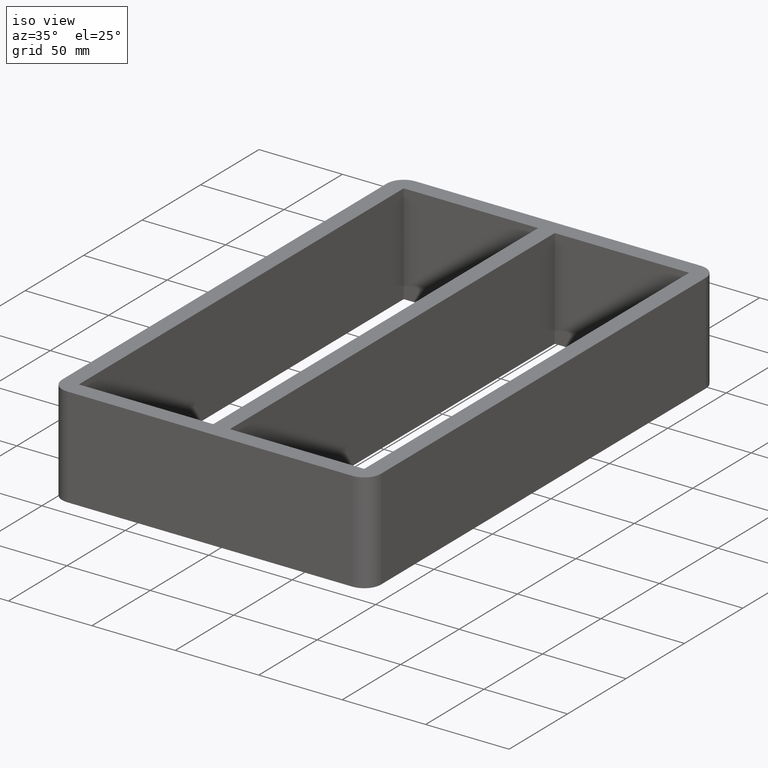
[diagram: clean part render]
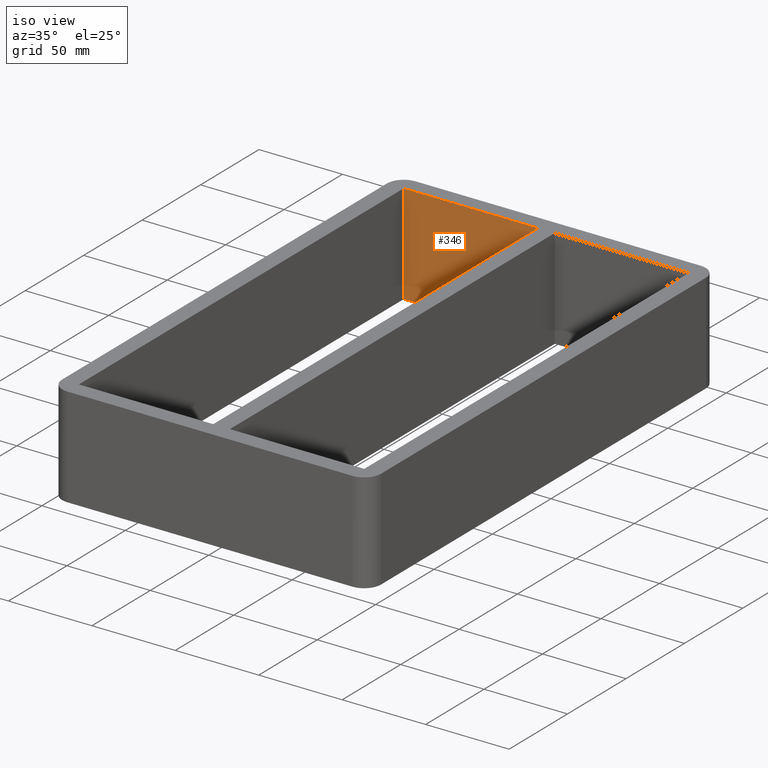
[diagram: same view with one face highlighted and labeled with its STEP entity id]
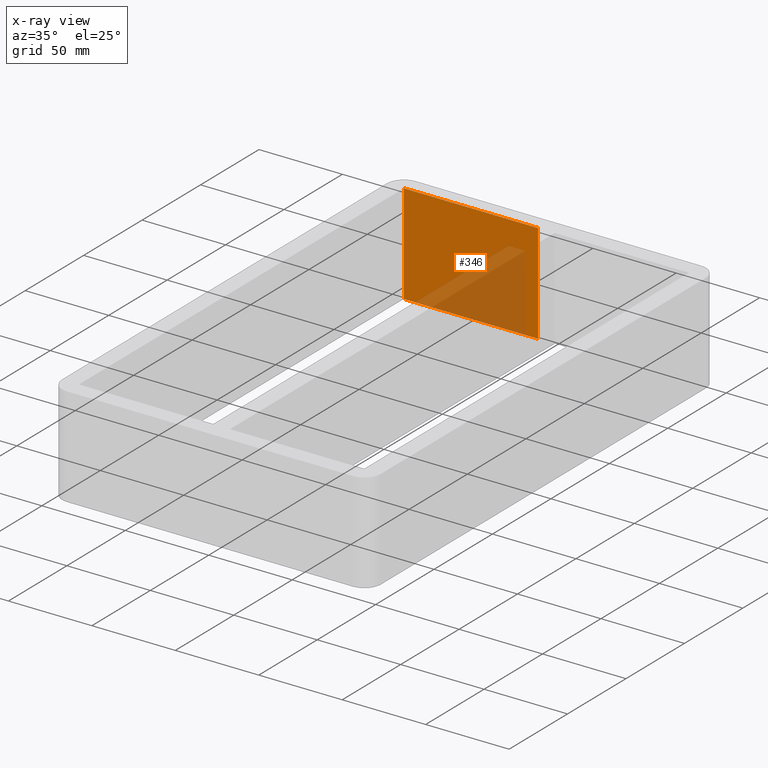
[diagram: x-ray of the same camera — body ghosted, the highlighted face saturated]
A machine part, iso view. The second image highlights one B-rep face of the part: STEP entity #346.
The next image is the same camera in x-ray: the body ghosted, the highlighted face saturated — about 36% of this face is hidden behind the body in this view.
In plain terms, the highlighted planar face has unit normal (0, 1, 0).
Its self-contained STEP definition (entity closure, byte-faithful):
#36=FACE_OUTER_BOUND('',#54,.T.);
#54=EDGE_LOOP('',(#251,#252,#253,#254));
#86=LINE('',#532,#126);
#87=LINE('',#535,#127);
#88=LINE('',#537,#128);
#89=LINE('',#538,#129);
#126=VECTOR('',#432,10.);
#127=VECTOR('',#435,10.);
#128=VECTOR('',#436,10.);
#129=VECTOR('',#437,10.);
#160=VERTEX_POINT('',#526);
#162=VERTEX_POINT('',#530);
#163=VERTEX_POINT('',#534);
#164=VERTEX_POINT('',#536);
#198=EDGE_CURVE('',#162,#160,#86,.T.);
#199=EDGE_CURVE('',#160,#163,#87,.T.);
#200=EDGE_CURVE('',#164,#162,#88,.T.);
#201=EDGE_CURVE('',#164,#163,#89,.T.);
#251=ORIENTED_EDGE('',*,*,#199,.F.);
#252=ORIENTED_EDGE('',*,*,#198,.F.);
#253=ORIENTED_EDGE('',*,*,#200,.F.);
#254=ORIENTED_EDGE('',*,*,#201,.T.);
#332=PLANE('',#384);
#346=ADVANCED_FACE('',(#36),#332,.F.);
#384=AXIS2_PLACEMENT_3D('',#533,#433,#434);
#432=DIRECTION('',(0.,0.,-1.));
#433=DIRECTION('center_axis',(0.,1.,0.));
#434=DIRECTION('ref_axis',(1.,0.,0.));
#435=DIRECTION('',(-1.,0.,0.));
#436=DIRECTION('',(1.,0.,0.));
#437=DIRECTION('',(0.,0.,-1.));
#526=CARTESIAN_POINT('',(-5.00000000000183,138.999999999991,-60.));
#530=CARTESIAN_POINT('',(-5.00000000000183,138.999999999991,0.));
#532=CARTESIAN_POINT('',(-5.00000000000183,138.999999999991,0.));
#533=CARTESIAN_POINT('Origin',(-85.4999999999998,138.999999999991,0.));
#534=CARTESIAN_POINT('',(-85.4999999999998,138.999999999991,-60.));
#535=CARTESIAN_POINT('',(-42.7499999999999,138.999999999991,-60.));
#536=CARTESIAN_POINT('',(-85.4999999999998,138.999999999991,0.));
#537=CARTESIAN_POINT('',(-42.7499999999999,138.999999999991,0.));
#538=CARTESIAN_POINT('',(-85.4999999999998,138.999999999991,0.));